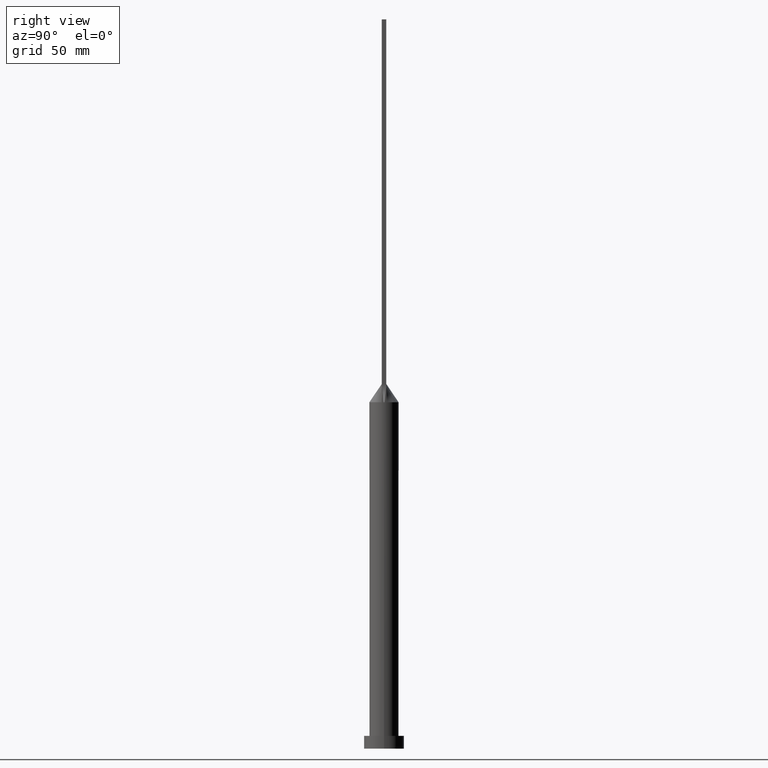
[diagram: clean part render]
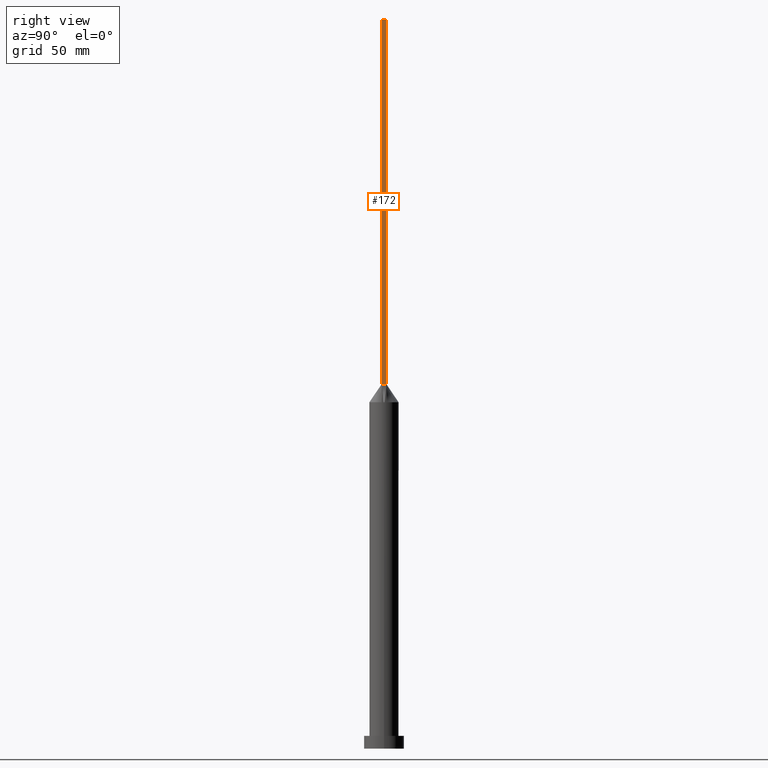
[diagram: same view with one face highlighted and labeled with its STEP entity id]
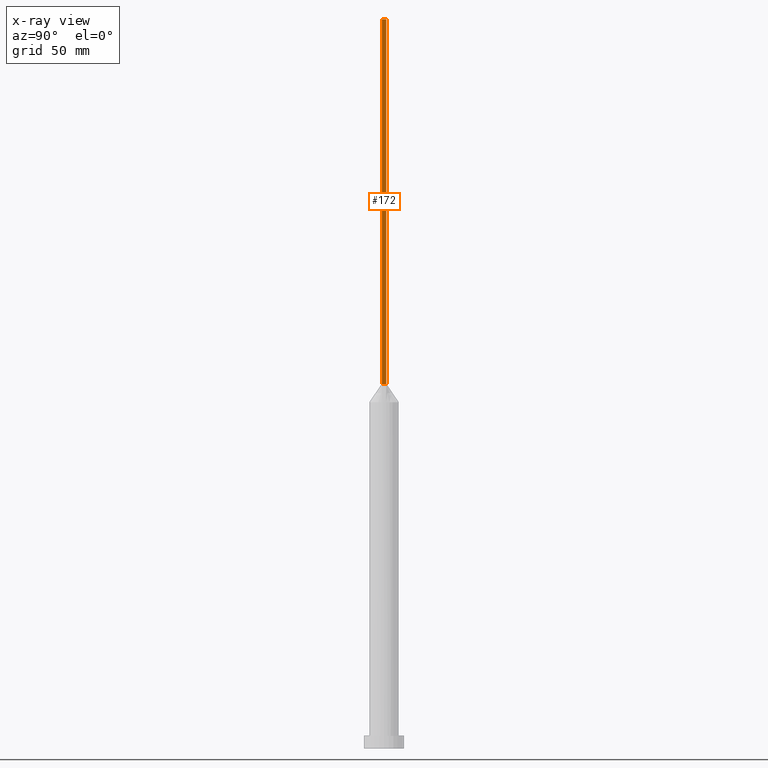
[diagram: x-ray of the same camera — body ghosted, the highlighted face saturated]
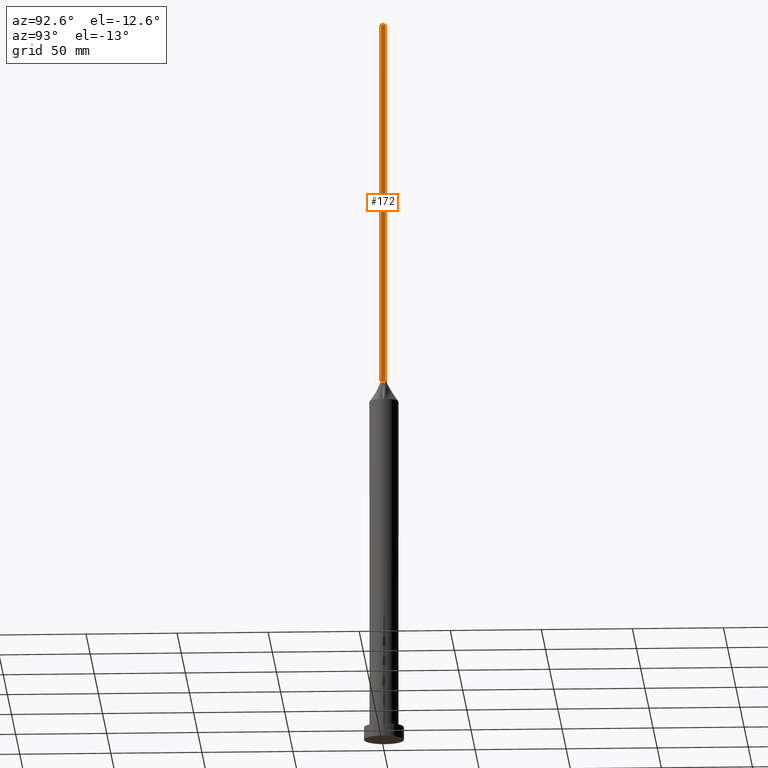
[diagram: same view with one face highlighted and labeled with its STEP entity id]
A machine part, right view. The second image highlights one B-rep face of the part: STEP entity #172.
The next image is the same camera in x-ray: the body ghosted, the highlighted face saturated — about 0% of this face is hidden behind the body in this view.
A second angle (auxiliary view) of the same face is appended — the face is thin or edge-on in the first view.
In plain terms, the highlighted planar face has unit normal (-1, 0, 0).
Its self-contained STEP definition (entity closure, byte-faithful):
#7 = PLANE ( 'NONE',  #574 ) ;
#23 = VERTEX_POINT ( 'NONE', #130 ) ;
#31 = LINE ( 'NONE', #373, #474 ) ;
#39 = LINE ( 'NONE', #383, #596 ) ;
#61 = VERTEX_POINT ( 'NONE', #78 ) ;
#78 = CARTESIAN_POINT ( 'NONE',  ( 7.750000000000000000, -1.249999999999999778, 200.0000000000000000 ) ) ;
#86 = EDGE_CURVE ( 'NONE', #220, #23, #39, .T. ) ;
#116 = CARTESIAN_POINT ( 'NONE',  ( 7.750000000000000000, 1.250000000000000222, 400.0000000000000000 ) ) ;
#117 = VERTEX_POINT ( 'NONE', #622 ) ;
#130 = CARTESIAN_POINT ( 'NONE',  ( 7.750000000000000000, 1.250000000000000222, 400.0000000000000000 ) ) ;
#169 = EDGE_LOOP ( 'NONE', ( #609, #568, #419, #475 ) ) ;
#171 = LINE ( 'NONE', #116, #536 ) ;
#172 = ADVANCED_FACE ( 'NONE', ( #234 ), #7, .F. ) ;
#201 = LINE ( 'NONE', #508, #359 ) ;
#219 = DIRECTION ( 'NONE',  ( -0.000000000000000000, 1.000000000000000000, -0.000000000000000000 ) ) ;
#220 = VERTEX_POINT ( 'NONE', #510 ) ;
#234 = FACE_OUTER_BOUND ( 'NONE', #169, .T. ) ;
#351 = CARTESIAN_POINT ( 'NONE',  ( 7.750000000000000000, -1.249999999999999778, 400.0000000000000000 ) ) ;
#356 = DIRECTION ( 'NONE',  ( -1.000000000000000000, 0.000000000000000000, 0.000000000000000000 ) ) ;
#359 = VECTOR ( 'NONE', #401, 1000.000000000000000 ) ;
#373 = CARTESIAN_POINT ( 'NONE',  ( 7.750000000000000000, 1.250000000000000222, 200.0000000000000000 ) ) ;
#383 = CARTESIAN_POINT ( 'NONE',  ( 7.750000000000000000, -1.249999999999999778, 400.0000000000000000 ) ) ;
#392 = EDGE_CURVE ( 'NONE', #61, #117, #31, .T. ) ;
#401 = DIRECTION ( 'NONE',  ( -0.000000000000000000, -0.000000000000000000, -1.000000000000000000 ) ) ;
#419 = ORIENTED_EDGE ( 'NONE', *, *, #86, .F. ) ;
#461 = EDGE_CURVE ( 'NONE', #23, #117, #171, .T. ) ;
#474 = VECTOR ( 'NONE', #219, 1000.000000000000000 ) ;
#475 = ORIENTED_EDGE ( 'NONE', *, *, #566, .T. ) ;
#508 = CARTESIAN_POINT ( 'NONE',  ( 7.750000000000000000, -1.249999999999999778, 400.0000000000000000 ) ) ;
#510 = CARTESIAN_POINT ( 'NONE',  ( 7.750000000000000000, -1.249999999999999778, 400.0000000000000000 ) ) ;
#532 = DIRECTION ( 'NONE',  ( 0.000000000000000000, 1.000000000000000000, 0.000000000000000000 ) ) ;
#536 = VECTOR ( 'NONE', #578, 1000.000000000000000 ) ;
#566 = EDGE_CURVE ( 'NONE', #220, #61, #201, .T. ) ;
#568 = ORIENTED_EDGE ( 'NONE', *, *, #461, .F. ) ;
#574 = AXIS2_PLACEMENT_3D ( 'NONE', #351, #356, #601 ) ;
#578 = DIRECTION ( 'NONE',  ( -0.000000000000000000, -0.000000000000000000, -1.000000000000000000 ) ) ;
#596 = VECTOR ( 'NONE', #532, 1000.000000000000000 ) ;
#601 = DIRECTION ( 'NONE',  ( 0.000000000000000000, 0.000000000000000000, 1.000000000000000000 ) ) ;
#609 = ORIENTED_EDGE ( 'NONE', *, *, #392, .T. ) ;
#622 = CARTESIAN_POINT ( 'NONE',  ( 7.750000000000000000, 1.250000000000000222, 200.0000000000000000 ) ) ;